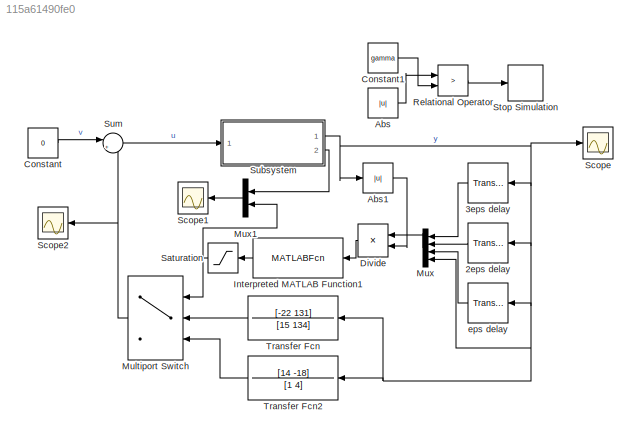
MODEL slx_115a61490fe0
KIND model
CONFIG AbsTol = auto
CONFIG EnableMultiTasking = off
CONFIG FixedStep = 0.001
CONFIG MaxStep = auto
CONFIG MinStep = auto
CONFIG RelTol = 1e-3
CONFIG SampleTimeConstraint = Unconstrained
CONFIG SolverName = ode1
CONFIG StartTime = 0.0
CONFIG StopTime = 3.0
BLOCK [TransportDelay]  eps delay
  DelayTime = eps
  NameLocation = top
  Ports = [1, 1]
BLOCK [TransportDelay] 2eps delay
  DelayTime = 2*eps
  NameLocation = top
  Ports = [1, 1]
BLOCK [TransportDelay] 3eps delay
  DelayTime = 3*eps
  NameLocation = top
  Ports = [1, 1]
BLOCK [Abs] Abs
  SaturateOnIntegerOverflow = off
BLOCK [Abs] Abs1
  SaturateOnIntegerOverflow = off
BLOCK [Constant] Constant
  Value = 0
BLOCK [Constant] Constant1
  Value = gamma
BLOCK [Product] Divide
  Inputs = */
  NameLocation = top
  Ports = [2, 1]
BLOCK [MATLABFcn] Interpreted MATLAB Function1
  MATLABFcn = observer
  NameLocation = top
  OutputDimensions = 1
  Ports = [1, 1]
BLOCK [MultiPortSwitch] Multiport Switch
  InputSameDT = off
  Inputs = 2
  NameLocation = top
  Ports = [3, 1]
  SaturateOnIntegerOverflow = off
BLOCK [Mux] Mux
  DisplayOption = bar
  NameLocation = top
  Ports = [4, 1]
BLOCK [Mux] Mux1
  DisplayOption = bar
  Inputs = 2
  NameLocation = top
  Ports = [2, 1]
BLOCK [RelationalOperator] Relational Operator
  InputSameDT = off
  Operator = >
  OutDataTypeStr = boolean
  Ports = [2, 1]
  RndMeth = Simplest
BLOCK [Saturate] Saturation
  LowerLimit = 1
  NameLocation = top
  UpperLimit = 2
BLOCK [Scope] Scope
  Floating = off
  NumInputPorts = 1
  Ports = [1]
  ScopeSpecificationString = Simulink.scopes.TimeScopeBlockCfg('CurrentConfiguration', extmgr.ConfigurationSet(extmgr.Configuration('Core','General UI',true),extmgr.Configuration('Core','Source UI',true),extmgr.Configuration('Sources','WiredSimulink',true),extmgr.Configuration('Visuals','Time Domain',true,'SerializedDisplays',{struct('MinYLimReal','1.43693','MaxYLimReal','2.06759','YLabelReal','','MinYLimMag','1.43693','MaxYL...<+1363ch>
BLOCK [Scope] Scope1
  Floating = off
  NameLocation = top
  NumInputPorts = 1
  Ports = [1]
  ScopeSpecificationString = Simulink.scopes.TimeScopeBlockCfg('CurrentConfiguration', extmgr.ConfigurationSet(extmgr.Configuration('Core','General UI',true),extmgr.Configuration('Core','Source UI',true),extmgr.Configuration('Sources','WiredSimulink',true,'DataLoggingVariableName','ScopeData3'),extmgr.Configuration('Visuals','Time Domain',true,'SerializedDisplays',{struct('MinYLimReal','0.875','MaxYLimReal','2.125','YLabelRea...<+1423ch>
BLOCK [Scope] Scope2
  Floating = off
  NameLocation = top
  NumInputPorts = 1
  Ports = [1]
  ScopeSpecificationString = Simulink.scopes.TimeScopeBlockCfg('CurrentConfiguration', extmgr.ConfigurationSet(extmgr.Configuration('Core','General UI',true),extmgr.Configuration('Core','Source UI',true),extmgr.Configuration('Sources','WiredSimulink',true,'DataLoggingVariableName','ScopeData4'),extmgr.Configuration('Visuals','Time Domain',true),extmgr.Configuration('Tools','Plot Navigation',true),extmgr.Configuration('Tools',...<+40ch>
BLOCK [Stop] Stop Simulation
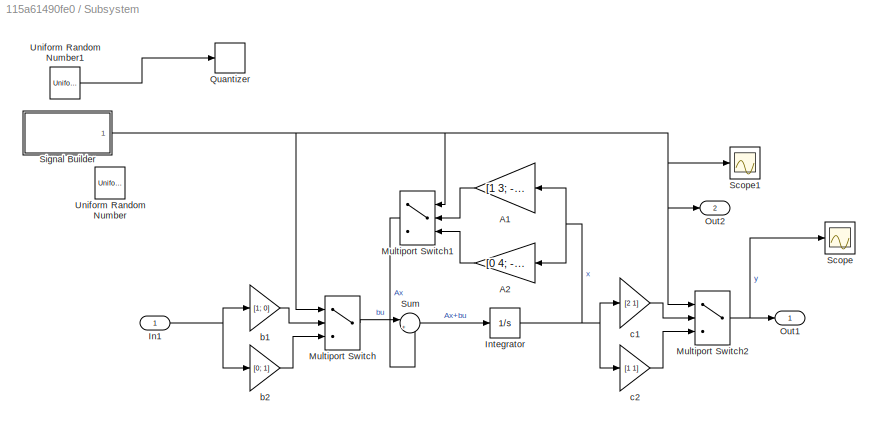
BLOCK [SubSystem] Subsystem
  Ports = [1, 2]
  RequestExecContextInheritance = off
BLOCK [Gain] Subsystem/A1
  Gain = [1 3; -1 2]
  Multiplication = Matrix(K*u)
  NameLocation = top
BLOCK [Gain] Subsystem/A2
  Gain = [0 4; -6 9]
  Multiplication = Matrix(K*u)
  NameLocation = top
BLOCK [Inport] Subsystem/In1
BLOCK [Integrator] Subsystem/Integrator
  InitialCondition = [0.4; 0.7]
  Ports = [1, 1]
BLOCK [MultiPortSwitch] Subsystem/Multiport Switch
  InputSameDT = off
  Inputs = 2
  Ports = [3, 1]
  SaturateOnIntegerOverflow = off
BLOCK [MultiPortSwitch] Subsystem/Multiport Switch1
  InputSameDT = off
  Inputs = 2
  NameLocation = top
  Ports = [3, 1]
  SaturateOnIntegerOverflow = off
BLOCK [MultiPortSwitch] Subsystem/Multiport Switch2
  InputSameDT = off
  Inputs = 2
  Ports = [3, 1]
  SaturateOnIntegerOverflow = off
BLOCK [Outport] Subsystem/Out1
BLOCK [Outport] Subsystem/Out2
  Port = 2
BLOCK [Quantizer] Subsystem/Quantizer
  QuantizationInterval = 1
BLOCK [Scope] Subsystem/Scope
  Floating = off
  NumInputPorts = 1
  Ports = [1]
  ScopeSpecificationString = Simulink.scopes.TimeScopeBlockCfg('CurrentConfiguration', extmgr.ConfigurationSet(extmgr.Configuration('Core','General UI',true),extmgr.Configuration('Core','Source UI',true),extmgr.Configuration('Sources','WiredSimulink',true,'DataLoggingVariableName','ScopeData1'),extmgr.Configuration('Visuals','Time Domain',true,'SerializedDisplays',{struct('MinYLimReal','-37221.80314','MaxYLimReal','4162.43278...<+1432ch>
BLOCK [Scope] Subsystem/Scope1
  Floating = off
  NumInputPorts = 1
  Ports = [1]
  ScopeSpecificationString = Simulink.scopes.TimeScopeBlockCfg('CurrentConfiguration', extmgr.ConfigurationSet(extmgr.Configuration('Core','General UI',true),extmgr.Configuration('Core','Source UI',true),extmgr.Configuration('Sources','WiredSimulink',true,'DataLoggingVariableName','ScopeData2'),extmgr.Configuration('Visuals','Time Domain',true,'SerializedDisplays',{struct('MinYLimReal','0.875','MaxYLimReal','2.125','YLabelRea...<+1432ch>
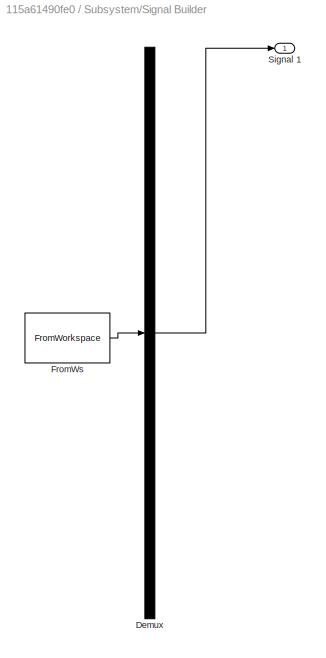
BLOCK [SubSystem] Subsystem/Signal Builder
  ClipboardFcn = sigbuilder_block('clipboard');
  CloseFcn = sigbuilder_block('close');
  ContinueFcn = sigbuilder_block('continue');
  CopyFcn = sigbuilder_block('copy');
  DeleteFcn = sigbuilder_block('delete');
  LoadFcn = sigbuilder_block('load');
  MaskHideContents = on
  ModelCloseFcn = sigbuilder_block('modelClose');
  NameChangeFcn = sigbuilder_block('namechange');
  OpenFcn = sigbuilder_block('open',[396.6 99.6 550.8 400.2 ]);
  PauseFcn = sigbuilder_block('pause');
  Ports = [0, 1]
  PreSaveFcn = sigbuilder_block('preSave');
  RequestExecContextInheritance = off
  StartFcn = sigbuilder_block('start');
  StopFcn = sigbuilder_block('stop');
  Tag = STV Subsys
BLOCK [Demux] Subsystem/Signal Builder/Demux
  DisplayOption = none
  Outputs = 1
  Ports = [1, 1]
  Tag = STV Demux
BLOCK [FromWorkspace] Subsystem/Signal Builder/FromWs
  Tag = STV FromWs
  VariableName = tuvar
BLOCK [Outport] Subsystem/Signal Builder/Signal 1
  Tag = STV Outport
BLOCK [Sum] Subsystem/Sum
  Inputs = |++
  Ports = [2, 1]
BLOCK [UniformRandomNumber] Subsystem/Uniform Random Number
  Maximum = 10*tau
  Minimum = tau
  SampleTime = 0.1
BLOCK [UniformRandomNumber] Subsystem/Uniform Random Number1
  Maximum = 2
  Minimum = 1
  SampleTime = 0.1
BLOCK [Gain] Subsystem/b1
  Gain = [1; 0]
  Multiplication = Matrix(K*u)
BLOCK [Gain] Subsystem/b2
  Gain = [0; 1]
  Multiplication = Matrix(K*u)
BLOCK [Gain] Subsystem/c1
  Gain = [2 1]
  Multiplication = Matrix(K*u)
BLOCK [Gain] Subsystem/c2
  Gain = [1 1]
  Multiplication = Matrix(K*u)
BLOCK [Sum] Sum
  Inputs = |+-
  Ports = [2, 1]
BLOCK [TransferFcn] Transfer Fcn
  Denominator = [15 134]
  NameLocation = top
  Numerator = [-22 131]
BLOCK [TransferFcn] Transfer Fcn2
  Denominator = [1 4]
  NameLocation = top
  Numerator = [14 -18]
LINE  eps delay:1 -> Mux:3
LINE 2eps delay:1 -> Mux:2
LINE 3eps delay:1 -> Mux:1
LINE Abs1:1 -> Divide:2
LINE Abs:1 -> Relational Operator:1
LINE Constant1:1 -> Relational Operator:2
LINE Constant:1 -> Sum:1
LINE Divide:1 -> Interpreted MATLAB Function1:1
LINE Interpreted MATLAB Function1:1 -> Saturation:1
NET Multiport Switch:1 -> Scope2:1, Sum:2
LINE Mux1:1 -> Scope1:1
LINE Mux:1 -> Divide:1
LINE Relational Operator:1 -> Stop Simulation:1
NET Saturation:1 -> Multiport Switch:1, Mux1:2
LINE Subsystem/A1:1 -> Subsystem/Multiport Switch1:2
LINE Subsystem/A2:1 -> Subsystem/Multiport Switch1:3
NET Subsystem/In1:1 -> Subsystem/b1:1, Subsystem/b2:1
NET Subsystem/Integrator:1 -> Subsystem/A1:1, Subsystem/A2:1, Subsystem/c1:1, Subsystem/c2:1
LINE Subsystem/Multiport Switch1:1 -> Subsystem/Sum:2
NET Subsystem/Multiport Switch2:1 -> Subsystem/Out1:1, Subsystem/Scope:1
LINE Subsystem/Multiport Switch:1 -> Subsystem/Sum:1
NET Subsystem/Signal Builder:1 -> Subsystem/Multiport Switch1:1, Subsystem/Multiport Switch2:1, Subsystem/Multiport Switch:1, Subsystem/Out2:1, Subsystem/Scope1:1
LINE Subsystem/Sum:1 -> Subsystem/Integrator:1
LINE Subsystem/Uniform Random Number1:1 -> Subsystem/Quantizer:1
LINE Subsystem/b1:1 -> Subsystem/Multiport Switch:2
LINE Subsystem/b2:1 -> Subsystem/Multiport Switch:3
LINE Subsystem/c1:1 -> Subsystem/Multiport Switch2:2
LINE Subsystem/c2:1 -> Subsystem/Multiport Switch2:3
NET Subsystem:1 ->  eps delay:1, 2eps delay:1, 3eps delay:1, Abs1:1, Mux:4, Scope:1, Transfer Fcn2:1, Transfer Fcn:1
LINE Subsystem:2 -> Mux1:1
LINE Sum:1 -> Subsystem:1
LINE Transfer Fcn2:1 -> Multiport Switch:3
LINE Transfer Fcn:1 -> Multiport Switch:2
note: NET lines group one-source signal fan-out (src -> all destinations, sorted); 1:1 wires keep LINE
